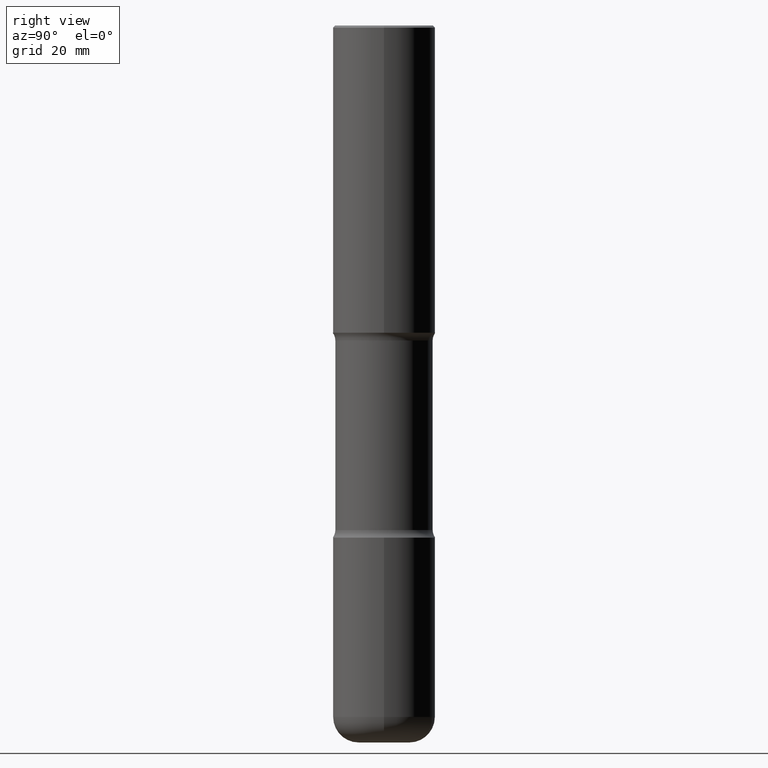
[diagram: clean part render]
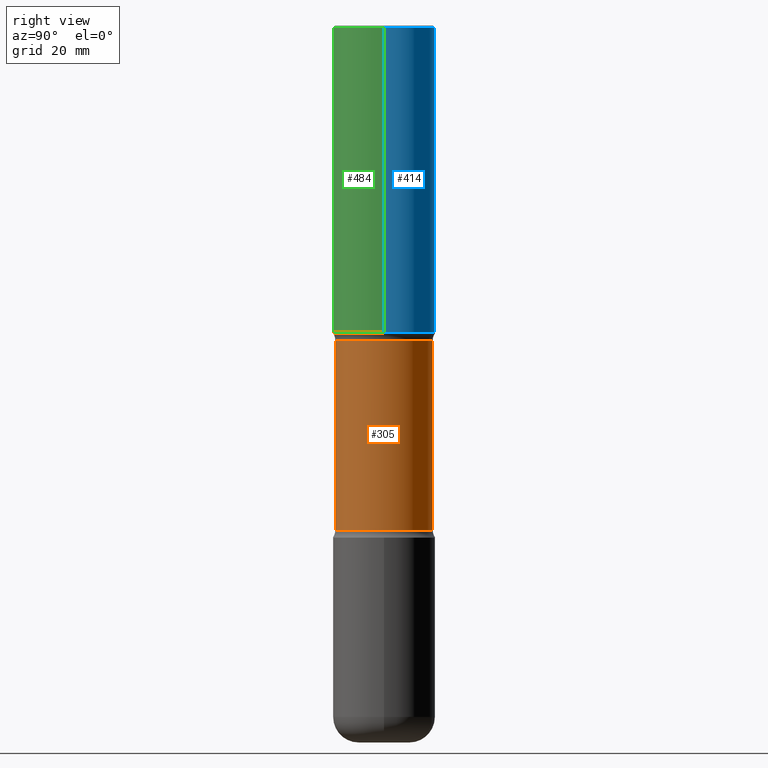
[diagram: same view with three faces highlighted in distinct colors, each labeled with its STEP entity id]
A machine part, right view with three faces highlighted in distinct colors.
Their STEP definitions:

[orange] entity #305 — the highlighted cylindrical surface (partial cylindrical patch) has radius 12.065 mm, axis along (0, -0, -1).
#2 = AXIS2_PLACEMENT_3D ( 'NONE', #445, #225, #535 ) ;
#8 = EDGE_CURVE ( 'NONE', #158, #272, #187, .T. ) ;
#65 = VECTOR ( 'NONE', #419, 39.37007874015748143 ) ;
#74 = VERTEX_POINT ( 'NONE', #449 ) ;
#76 = LINE ( 'NONE', #425, #393 ) ;
#83 = DIRECTION ( 'NONE',  ( 2.495638921910708014E-29, -3.419634877618474112E-15, -1.000000000000000000 ) ) ;
#116 = CARTESIAN_POINT ( 'NONE',  ( 3.316907271901051235E-15, 0.4749999999999892641, -3.075000000000001510 ) ) ;
#117 = ORIENTED_EDGE ( 'NONE', *, *, #8, .T. ) ;
#130 = FACE_OUTER_BOUND ( 'NONE', #222, .T. ) ;
#136 = EDGE_CURVE ( 'NONE', #74, #409, #164, .T. ) ;
#158 = VERTEX_POINT ( 'NONE', #116 ) ;
#164 = CIRCLE ( 'NONE', #325, 0.4749999999999999778 ) ;
#168 = LINE ( 'NONE', #337, #65 ) ;
#185 = EDGE_CURVE ( 'NONE', #158, #74, #76, .T. ) ;
#187 = CIRCLE ( 'NONE', #2, 0.4750000000000001443 ) ;
#204 = CARTESIAN_POINT ( 'NONE',  ( 1.204017111178237438E-28, -1.720093407839433761E-14, -4.924999999999998046 ) ) ;
#206 = EDGE_CURVE ( 'NONE', #272, #409, #168, .T. ) ;
#222 = EDGE_LOOP ( 'NONE', ( #117, #285, #245, #542 ) ) ;
#225 = DIRECTION ( 'NONE',  ( 2.495638921910708014E-29, -3.419634877618474112E-15, -1.000000000000000000 ) ) ;
#245 = ORIENTED_EDGE ( 'NONE', *, *, #136, .F. ) ;
#272 = VERTEX_POINT ( 'NONE', #426 ) ;
#285 = ORIENTED_EDGE ( 'NONE', *, *, #206, .T. ) ;
#302 = DIRECTION ( 'NONE',  ( 2.495638921910708014E-29, -3.419634877618474112E-15, -1.000000000000000000 ) ) ;
#305 = ADVANCED_FACE ( 'NONE', ( #130 ), #349, .T. ) ;
#325 = AXIS2_PLACEMENT_3D ( 'NONE', #204, #382, #376 ) ;
#337 = CARTESIAN_POINT ( 'NONE',  ( -3.258736548941304889E-15, -0.4750000000000243472, -6.999999999999997335 ) ) ;
#342 = CARTESIAN_POINT ( 'NONE',  ( 1.721862187474709565E-28, -2.429667644945267101E-14, -6.999999999999998224 ) ) ;
#349 = CYLINDRICAL_SURFACE ( 'NONE', #555, 0.4750000000000000333 ) ;
#376 = DIRECTION ( 'NONE',  ( 6.982962677686265133E-15, 1.000000000000000000, -2.300503573612011422E-15 ) ) ;
#382 = DIRECTION ( 'NONE',  ( 2.495638921910708014E-29, -3.419634877618474112E-15, -1.000000000000000000 ) ) ;
#393 = VECTOR ( 'NONE', #83, 39.37007874015748143 ) ;
#409 = VERTEX_POINT ( 'NONE', #525 ) ;
#419 = DIRECTION ( 'NONE',  ( 2.495638921910708014E-29, -3.419634877618474112E-15, -1.000000000000000000 ) ) ;
#425 = CARTESIAN_POINT ( 'NONE',  ( 3.316907271901148659E-15, 0.4749999999999757194, -7.000000000000000000 ) ) ;
#426 = CARTESIAN_POINT ( 'NONE',  ( -3.344492773913550718E-15, -0.4750000000000109690, -3.074999999999998401 ) ) ;
#445 = CARTESIAN_POINT ( 'NONE',  ( 7.423239106247569958E-29, -1.087460955480016368E-14, -3.074999999999999734 ) ) ;
#449 = CARTESIAN_POINT ( 'NONE',  ( 3.316907271901096594E-15, 0.4749999999999827693, -4.924999999999999822 ) ) ;
#474 = DIRECTION ( 'NONE',  ( 6.982962677686265922E-15, 1.000000000000000000, -2.300503573612011028E-15 ) ) ;
#525 = CARTESIAN_POINT ( 'NONE',  ( -3.344492773913500625E-15, -0.4750000000000171863, -4.924999999999997158 ) ) ;
#535 = DIRECTION ( 'NONE',  ( 6.982962677686265133E-15, 1.000000000000000000, -3.450755360418015555E-15 ) ) ;
#542 = ORIENTED_EDGE ( 'NONE', *, *, #185, .F. ) ;
#555 = AXIS2_PLACEMENT_3D ( 'NONE', #342, #302, #474 ) ;

[blue] entity #414 — the highlighted cylindrical surface (partial cylindrical patch) has radius 12.7 mm, axis along (-0, 0, 1).
#19 = LINE ( 'NONE', #156, #88 ) ;
#22 = AXIS2_PLACEMENT_3D ( 'NONE', #478, #434, #311 ) ;
#25 = EDGE_LOOP ( 'NONE', ( #486, #129, #223, #439 ) ) ;
#52 = VERTEX_POINT ( 'NONE', #157 ) ;
#79 = CIRCLE ( 'NONE', #554, 0.5000000000000002220 ) ;
#88 = VECTOR ( 'NONE', #319, 39.37007874015748143 ) ;
#89 = CARTESIAN_POINT ( 'NONE',  ( 0.4999999999999999445, -3.500078625662628685E-15, -0.02000000000000013572 ) ) ;
#119 = DIRECTION ( 'NONE',  ( 1.000000000000000000, -6.982962677686267499E-15, 0.000000000000000000 ) ) ;
#129 = ORIENTED_EDGE ( 'NONE', *, *, #411, .T. ) ;
#133 = VECTOR ( 'NONE', #347, 39.37007874015748143 ) ;
#156 = CARTESIAN_POINT ( 'NONE',  ( 0.5000000000000001110, -3.491481338843134539E-15, 2.438088387897968457E-29 ) ) ;
#157 = CARTESIAN_POINT ( 'NONE',  ( -0.4999999999999999445, 3.421651712066269663E-15, -0.02000000000000013572 ) ) ;
#159 = CARTESIAN_POINT ( 'NONE',  ( -0.5000000000000002220, -1.719423142852643572E-15, -2.999999999999999112 ) ) ;
#173 = CARTESIAN_POINT ( 'NONE',  ( 7.336406418555407548E-29, -1.047444401652943320E-14, -2.999999999999999112 ) ) ;
#178 = DIRECTION ( 'NONE',  ( -2.445468806185136597E-29, 3.491481338843145583E-15, 1.000000000000000000 ) ) ;
#209 = CARTESIAN_POINT ( 'NONE',  ( 4.890937612370306439E-31, -6.982962677686338448E-17, -0.02000000000000013572 ) ) ;
#216 = LINE ( 'NONE', #304, #133 ) ;
#219 = FACE_OUTER_BOUND ( 'NONE', #25, .T. ) ;
#220 = AXIS2_PLACEMENT_3D ( 'NONE', #209, #502, #512 ) ;
#223 = ORIENTED_EDGE ( 'NONE', *, *, #234, .F. ) ;
#224 = CARTESIAN_POINT ( 'NONE',  ( 0.5000000000000002220, -1.396592535537256813E-14, -2.999999999999999112 ) ) ;
#226 = EDGE_CURVE ( 'NONE', #506, #461, #79, .T. ) ;
#234 = EDGE_CURVE ( 'NONE', #312, #52, #282, .T. ) ;
#282 = CIRCLE ( 'NONE', #220, 0.4999999999999999445 ) ;
#304 = CARTESIAN_POINT ( 'NONE',  ( -0.5000000000000001110, 3.552713678800501718E-15, -2.459467545127453732E-29 ) ) ;
#311 = DIRECTION ( 'NONE',  ( 1.000000000000000000, -6.982962677686267499E-15, 4.876176775795935793E-29 ) ) ;
#312 = VERTEX_POINT ( 'NONE', #89 ) ;
#319 = DIRECTION ( 'NONE',  ( -2.445468806185136877E-29, 3.491481338843145188E-15, 1.000000000000000000 ) ) ;
#341 = CYLINDRICAL_SURFACE ( 'NONE', #22, 0.5000000000000001110 ) ;
#347 = DIRECTION ( 'NONE',  ( -2.445468806185136877E-29, 3.491481338843145188E-15, 1.000000000000000000 ) ) ;
#411 = EDGE_CURVE ( 'NONE', #461, #52, #216, .T. ) ;
#414 = ADVANCED_FACE ( 'NONE', ( #219 ), #341, .T. ) ;
#434 = DIRECTION ( 'NONE',  ( -2.445468806185136597E-29, 3.491481338843145583E-15, 1.000000000000000000 ) ) ;
#439 = ORIENTED_EDGE ( 'NONE', *, *, #550, .F. ) ;
#461 = VERTEX_POINT ( 'NONE', #159 ) ;
#478 = CARTESIAN_POINT ( 'NONE',  ( 0.000000000000000000, 0.000000000000000000, 0.000000000000000000 ) ) ;
#486 = ORIENTED_EDGE ( 'NONE', *, *, #226, .T. ) ;
#502 = DIRECTION ( 'NONE',  ( -2.445468806185136597E-29, 3.491481338843145583E-15, 1.000000000000000000 ) ) ;
#506 = VERTEX_POINT ( 'NONE', #224 ) ;
#512 = DIRECTION ( 'NONE',  ( 1.000000000000000000, -6.982962677686266711E-15, 0.000000000000000000 ) ) ;
#550 = EDGE_CURVE ( 'NONE', #506, #312, #19, .T. ) ;
#554 = AXIS2_PLACEMENT_3D ( 'NONE', #173, #178, #119 ) ;

[green] entity #484 — the highlighted cylindrical surface (partial cylindrical patch) has radius 12.7 mm, axis along (-0, 0, 1).
#15 = EDGE_LOOP ( 'NONE', ( #549, #362, #415, #322 ) ) ;
#19 = LINE ( 'NONE', #156, #88 ) ;
#36 = DIRECTION ( 'NONE',  ( -2.445468806185136597E-29, 3.491481338843145583E-15, 1.000000000000000000 ) ) ;
#52 = VERTEX_POINT ( 'NONE', #157 ) ;
#55 = CYLINDRICAL_SURFACE ( 'NONE', #371, 0.5000000000000001110 ) ;
#67 = CIRCLE ( 'NONE', #513, 0.5000000000000002220 ) ;
#68 = FACE_OUTER_BOUND ( 'NONE', #15, .T. ) ;
#88 = VECTOR ( 'NONE', #319, 39.37007874015748143 ) ;
#89 = CARTESIAN_POINT ( 'NONE',  ( 0.4999999999999999445, -3.500078625662628685E-15, -0.02000000000000013572 ) ) ;
#133 = VECTOR ( 'NONE', #347, 39.37007874015748143 ) ;
#153 = CIRCLE ( 'NONE', #352, 0.4999999999999999445 ) ;
#156 = CARTESIAN_POINT ( 'NONE',  ( 0.5000000000000001110, -3.491481338843134539E-15, 2.438088387897968457E-29 ) ) ;
#157 = CARTESIAN_POINT ( 'NONE',  ( -0.4999999999999999445, 3.421651712066269663E-15, -0.02000000000000013572 ) ) ;
#159 = CARTESIAN_POINT ( 'NONE',  ( -0.5000000000000002220, -1.719423142852643572E-15, -2.999999999999999112 ) ) ;
#216 = LINE ( 'NONE', #304, #133 ) ;
#224 = CARTESIAN_POINT ( 'NONE',  ( 0.5000000000000002220, -1.396592535537256813E-14, -2.999999999999999112 ) ) ;
#227 = DIRECTION ( 'NONE',  ( -2.445468806185136597E-29, 3.491481338843145583E-15, 1.000000000000000000 ) ) ;
#235 = DIRECTION ( 'NONE',  ( 1.000000000000000000, -6.982962677686267499E-15, 4.876176775795935793E-29 ) ) ;
#253 = EDGE_CURVE ( 'NONE', #52, #312, #153, .T. ) ;
#273 = CARTESIAN_POINT ( 'NONE',  ( 7.336406418555407548E-29, -1.047444401652943320E-14, -2.999999999999999112 ) ) ;
#277 = DIRECTION ( 'NONE',  ( -2.445468806185136597E-29, 3.491481338843145583E-15, 1.000000000000000000 ) ) ;
#304 = CARTESIAN_POINT ( 'NONE',  ( -0.5000000000000001110, 3.552713678800501718E-15, -2.459467545127453732E-29 ) ) ;
#312 = VERTEX_POINT ( 'NONE', #89 ) ;
#319 = DIRECTION ( 'NONE',  ( -2.445468806185136877E-29, 3.491481338843145188E-15, 1.000000000000000000 ) ) ;
#321 = DIRECTION ( 'NONE',  ( 1.000000000000000000, -6.982962677686267499E-15, 0.000000000000000000 ) ) ;
#322 = ORIENTED_EDGE ( 'NONE', *, *, #253, .F. ) ;
#347 = DIRECTION ( 'NONE',  ( -2.445468806185136877E-29, 3.491481338843145188E-15, 1.000000000000000000 ) ) ;
#352 = AXIS2_PLACEMENT_3D ( 'NONE', #559, #36, #551 ) ;
#362 = ORIENTED_EDGE ( 'NONE', *, *, #475, .T. ) ;
#371 = AXIS2_PLACEMENT_3D ( 'NONE', #444, #227, #235 ) ;
#411 = EDGE_CURVE ( 'NONE', #461, #52, #216, .T. ) ;
#415 = ORIENTED_EDGE ( 'NONE', *, *, #550, .T. ) ;
#444 = CARTESIAN_POINT ( 'NONE',  ( 0.000000000000000000, 0.000000000000000000, 0.000000000000000000 ) ) ;
#461 = VERTEX_POINT ( 'NONE', #159 ) ;
#475 = EDGE_CURVE ( 'NONE', #461, #506, #67, .T. ) ;
#484 = ADVANCED_FACE ( 'NONE', ( #68 ), #55, .T. ) ;
#506 = VERTEX_POINT ( 'NONE', #224 ) ;
#513 = AXIS2_PLACEMENT_3D ( 'NONE', #273, #277, #321 ) ;
#549 = ORIENTED_EDGE ( 'NONE', *, *, #411, .F. ) ;
#550 = EDGE_CURVE ( 'NONE', #506, #312, #19, .T. ) ;
#551 = DIRECTION ( 'NONE',  ( 1.000000000000000000, -6.982962677686266711E-15, 0.000000000000000000 ) ) ;
#559 = CARTESIAN_POINT ( 'NONE',  ( 4.890937612370306439E-31, -6.982962677686338448E-17, -0.02000000000000013572 ) ) ;